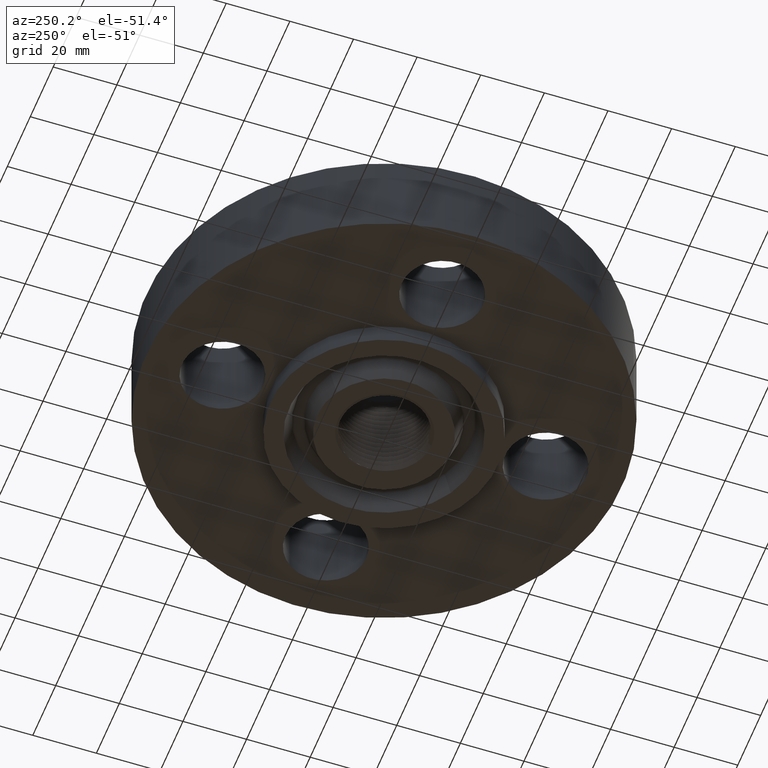
[diagram: clean part render]
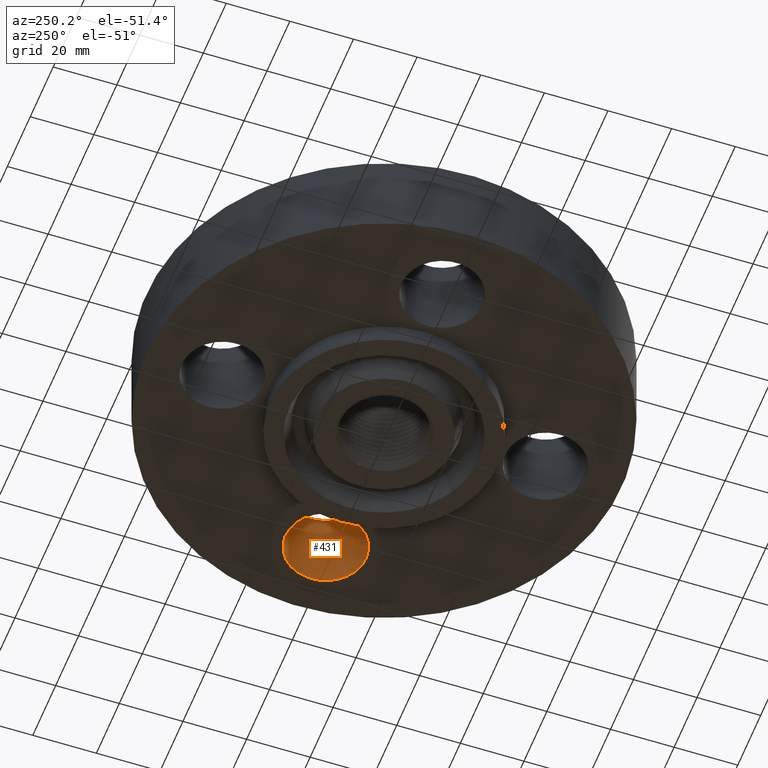
[diagram: same view with one face highlighted and labeled with its STEP entity id]
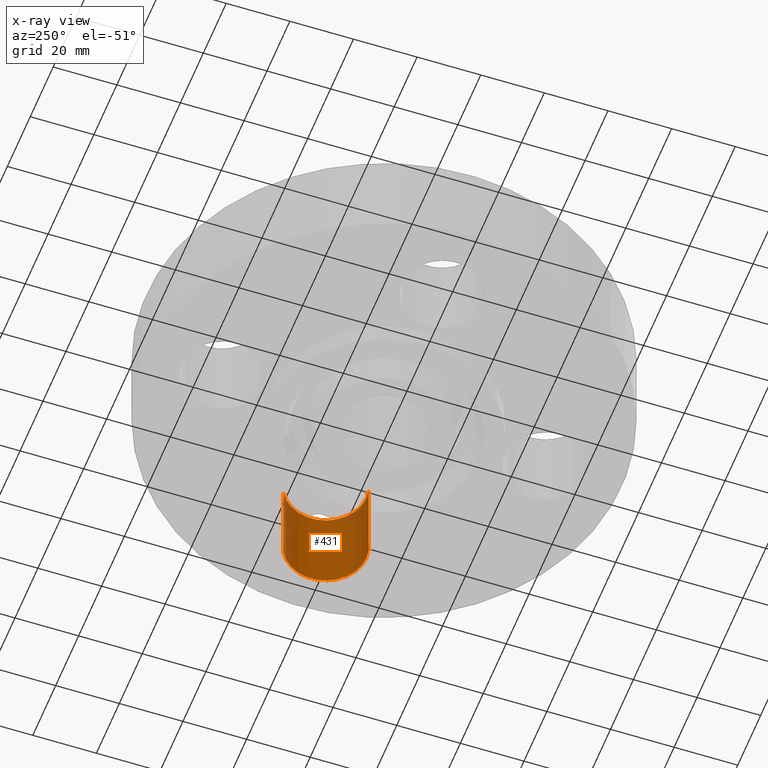
[diagram: x-ray of the same camera — body ghosted, the highlighted face saturated]
A machine part, auxiliary view. The second image highlights one B-rep face of the part: STEP entity #431.
The next image is the same camera in x-ray: the body ghosted, the highlighted face saturated — about 15% of this face is hidden behind the body in this view.
In plain terms, the highlighted cylindrical surface (partial cylindrical patch) has radius 12.7 mm, axis along (0, -0, -1).
Its self-contained STEP definition (entity closure, byte-faithful):
#378=AXIS2_PLACEMENT_3D('Cylinder Axis2P3D',#375,#376,#377) ;
#417=AXIS2_PLACEMENT_3D('Circle Axis2P3D',#415,#416,$) ;
#422=AXIS2_PLACEMENT_3D('Circle Axis2P3D',#420,#421,$) ;
#375=CARTESIAN_POINT('Axis2P3D Location',(2.00000000001,1.22464679915E-016,1.11606299213)) ;
#380=CARTESIAN_POINT('Line Origine',(1.7602872307,-0.438791280947,0.560000000002)) ;
#384=CARTESIAN_POINT('Vertex',(1.7602872307,-0.438791280947,0.)) ;
#386=CARTESIAN_POINT('Vertex',(1.7602872307,-0.438791280947,1.12)) ;
#393=CARTESIAN_POINT('Vertex',(2.23971276931,0.438791280947,0.)) ;
#396=CARTESIAN_POINT('Line Origine',(2.23971276931,0.438791280947,0.560000000002)) ;
#400=CARTESIAN_POINT('Vertex',(2.23971276931,0.438791280947,1.12)) ;
#415=CARTESIAN_POINT('Axis2P3D Location',(2.00000000001,1.22464679915E-016,0.)) ;
#420=CARTESIAN_POINT('Axis2P3D Location',(2.00000000001,1.22464679915E-016,1.12)) ;
#376=DIRECTION('Axis2P3D Direction',(0.,-0.,-0.0393700787402)) ;
#377=DIRECTION('Axis2P3D XDirection',(0.0188750212049,0.0345504945626,-0.)) ;
#381=DIRECTION('Vector Direction',(0.,0.,-0.0393700787402)) ;
#397=DIRECTION('Vector Direction',(0.,0.,-0.0393700787402)) ;
#416=DIRECTION('Axis2P3D Direction',(0.,-0.,-0.0393700787402)) ;
#421=DIRECTION('Axis2P3D Direction',(0.,-0.,-0.0393700787402)) ;
#382=VECTOR('Line Direction',#381,0.0393700787402) ;
#398=VECTOR('Line Direction',#397,0.0393700787402) ;
#426=ORIENTED_EDGE('',*,*,#402,.F.) ;
#427=ORIENTED_EDGE('',*,*,#419,.T.) ;
#428=ORIENTED_EDGE('',*,*,#388,.T.) ;
#429=ORIENTED_EDGE('',*,*,#424,.F.) ;
#431=ADVANCED_FACE('PartBody',(#430),#379,.F.) ;
#418=CIRCLE('generated circle',#417,0.500000000002) ;
#423=CIRCLE('generated circle',#422,0.500000000002) ;
#379=CYLINDRICAL_SURFACE('generated cylinder',#378,0.500000000002) ;
#388=EDGE_CURVE('',#385,#387,#383,.F.) ;
#402=EDGE_CURVE('',#394,#401,#399,.F.) ;
#419=EDGE_CURVE('',#394,#385,#418,.T.) ;
#424=EDGE_CURVE('',#401,#387,#423,.T.) ;
#425=EDGE_LOOP('',(#426,#427,#428,#429)) ;
#430=FACE_OUTER_BOUND('',#425,.T.) ;
#383=LINE('Line',#380,#382) ;
#399=LINE('Line',#396,#398) ;
#385=VERTEX_POINT('',#384) ;
#387=VERTEX_POINT('',#386) ;
#394=VERTEX_POINT('',#393) ;
#401=VERTEX_POINT('',#400) ;